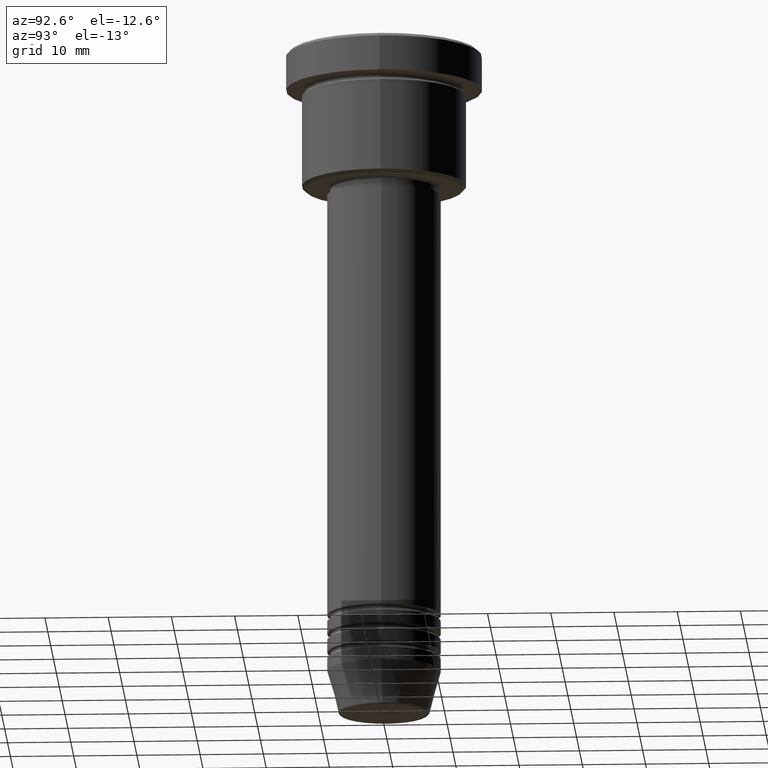
[diagram: clean part render]
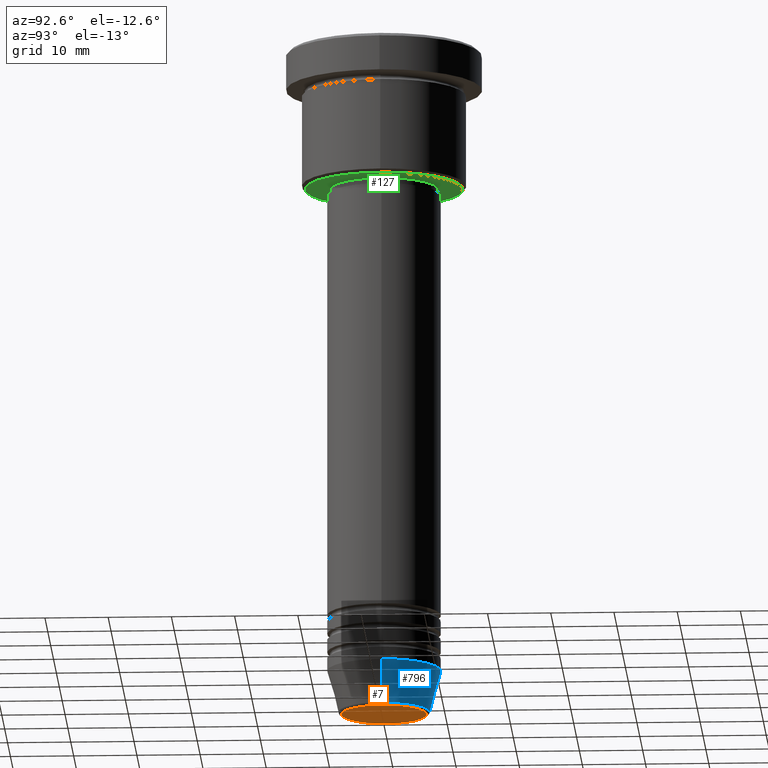
[diagram: same view with three faces highlighted in distinct colors, each labeled with its STEP entity id]
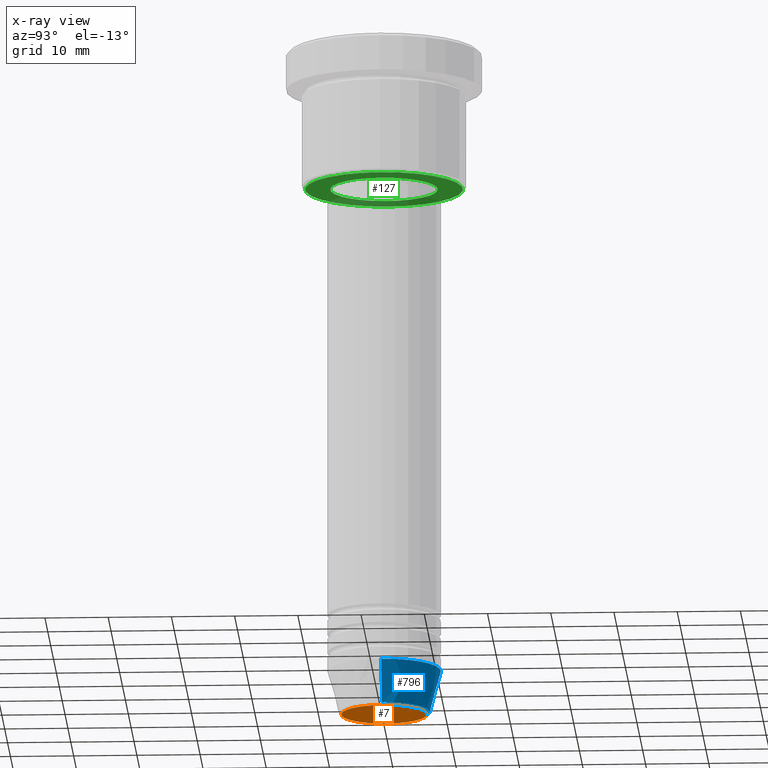
[diagram: x-ray of the same camera — body ghosted, the three highlighted faces saturated]
A machine part, auxiliary view with three faces highlighted in distinct colors.
The next image is the same camera in x-ray (body ghosted, the three faces saturated) — at least one of them is partly hidden behind the body in this view.
Their STEP definitions:

[orange] entity #7 — the highlighted planar face has unit normal (0, -0, 1).
#7 = ADVANCED_FACE ( 'NONE', ( #252 ), #806, .F. ) ;
#39 = CARTESIAN_POINT ( 'NONE',  ( -6.740692158992658278, 8.550696569392689626E-16, -107.0000000000000000 ) ) ;
#164 = CARTESIAN_POINT ( 'NONE',  ( 0.000000000000000000, 0.000000000000000000, -107.0000000000000000 ) ) ;
#177 = CARTESIAN_POINT ( 'NONE',  ( 0.000000000000000000, 0.000000000000000000, -107.0000000000000000 ) ) ;
#225 = EDGE_CURVE ( 'NONE', #855, #666, #730, .T. ) ;
#251 = DIRECTION ( 'NONE',  ( 0.000000000000000000, 0.000000000000000000, -1.000000000000000000 ) ) ;
#252 = FACE_OUTER_BOUND ( 'NONE', #476, .T. ) ;
#359 = DIRECTION ( 'NONE',  ( 0.000000000000000000, -0.000000000000000000, 1.000000000000000000 ) ) ;
#432 = CIRCLE ( 'NONE', #681, 6.740692158992658278 ) ;
#463 = CARTESIAN_POINT ( 'NONE',  ( 6.740692158992658278, 0.000000000000000000, -107.0000000000000000 ) ) ;
#476 = EDGE_LOOP ( 'NONE', ( #1009, #1174 ) ) ;
#505 = CARTESIAN_POINT ( 'NONE',  ( 0.000000000000000000, 0.000000000000000000, -107.0000000000000000 ) ) ;
#510 = AXIS2_PLACEMENT_3D ( 'NONE', #164, #531, #889 ) ;
#531 = DIRECTION ( 'NONE',  ( 0.000000000000000000, 0.000000000000000000, -1.000000000000000000 ) ) ;
#666 = VERTEX_POINT ( 'NONE', #463 ) ;
#681 = AXIS2_PLACEMENT_3D ( 'NONE', #505, #251, #1088 ) ;
#730 = CIRCLE ( 'NONE', #510, 6.740692158992658278 ) ;
#806 = PLANE ( 'NONE',  #902 ) ;
#855 = VERTEX_POINT ( 'NONE', #39 ) ;
#889 = DIRECTION ( 'NONE',  ( 1.000000000000000000, 0.000000000000000000, 0.000000000000000000 ) ) ;
#902 = AXIS2_PLACEMENT_3D ( 'NONE', #177, #359, #975 ) ;
#975 = DIRECTION ( 'NONE',  ( 1.000000000000000000, 0.000000000000000000, 0.000000000000000000 ) ) ;
#1009 = ORIENTED_EDGE ( 'NONE', *, *, #1016, .T. ) ;
#1016 = EDGE_CURVE ( 'NONE', #666, #855, #432, .T. ) ;
#1088 = DIRECTION ( 'NONE',  ( 1.000000000000000000, 0.000000000000000000, 0.000000000000000000 ) ) ;
#1174 = ORIENTED_EDGE ( 'NONE', *, *, #225, .T. ) ;

[blue] entity #796 — the highlighted conical surface has half-angle 15 deg.
#23 = CARTESIAN_POINT ( 'NONE',  ( -9.000000000000000000, 1.102182119232617714E-15, -100.0000000000000000 ) ) ;
#28 = ORIENTED_EDGE ( 'NONE', *, *, #40, .T. ) ;
#37 = VERTEX_POINT ( 'NONE', #391 ) ;
#40 = EDGE_CURVE ( 'NONE', #624, #874, #1121, .T. ) ;
#51 = DIRECTION ( 'NONE',  ( -0.000000000000000000, -0.000000000000000000, 1.000000000000000000 ) ) ;
#90 = VECTOR ( 'NONE', #916, 1000.000000000000000 ) ;
#101 = DIRECTION ( 'NONE',  ( 1.000000000000000000, 0.000000000000000000, 0.000000000000000000 ) ) ;
#187 = EDGE_LOOP ( 'NONE', ( #274, #28, #683, #1147 ) ) ;
#274 = ORIENTED_EDGE ( 'NONE', *, *, #910, .T. ) ;
#284 = CARTESIAN_POINT ( 'NONE',  ( -7.223655072137198374, 9.934123627281771026E-16, -106.6294095225512422 ) ) ;
#390 = CONICAL_SURFACE ( 'NONE', #828, 9.000000000000000000, 0.2617993877991500740 ) ;
#391 = CARTESIAN_POINT ( 'NONE',  ( 9.000000000000000000, 0.000000000000000000, -100.0000000000000000 ) ) ;
#526 = DIRECTION ( 'NONE',  ( 1.000000000000000000, 0.000000000000000000, 0.000000000000000000 ) ) ;
#550 = CIRCLE ( 'NONE', #905, 9.000000000000000000 ) ;
#561 = CARTESIAN_POINT ( 'NONE',  ( 9.000000000000000000, 0.000000000000000000, -100.0000000000000000 ) ) ;
#614 = CARTESIAN_POINT ( 'NONE',  ( 0.000000000000000000, 0.000000000000000000, -106.6294095225512422 ) ) ;
#621 = VECTOR ( 'NONE', #741, 1000.000000000000000 ) ;
#623 = AXIS2_PLACEMENT_3D ( 'NONE', #614, #632, #989 ) ;
#624 = VERTEX_POINT ( 'NONE', #284 ) ;
#632 = DIRECTION ( 'NONE',  ( -0.000000000000000000, -0.000000000000000000, 1.000000000000000000 ) ) ;
#650 = LINE ( 'NONE', #561, #90 ) ;
#655 = FACE_OUTER_BOUND ( 'NONE', #187, .T. ) ;
#665 = EDGE_CURVE ( 'NONE', #895, #37, #650, .T. ) ;
#679 = EDGE_CURVE ( 'NONE', #37, #874, #550, .T. ) ;
#683 = ORIENTED_EDGE ( 'NONE', *, *, #679, .F. ) ;
#741 = DIRECTION ( 'NONE',  ( -0.2588190451025213501, 3.169619151431772337E-17, 0.9659258262890680902 ) ) ;
#796 = ADVANCED_FACE ( 'NONE', ( #655 ), #390, .T. ) ;
#805 = DIRECTION ( 'NONE',  ( -0.000000000000000000, -0.000000000000000000, 1.000000000000000000 ) ) ;
#828 = AXIS2_PLACEMENT_3D ( 'NONE', #1017, #805, #101 ) ;
#847 = CIRCLE ( 'NONE', #623, 7.223655072137197486 ) ;
#857 = CARTESIAN_POINT ( 'NONE',  ( 0.000000000000000000, 0.000000000000000000, -100.0000000000000000 ) ) ;
#874 = VERTEX_POINT ( 'NONE', #876 ) ;
#876 = CARTESIAN_POINT ( 'NONE',  ( -9.000000000000000000, 1.102182119232617714E-15, -100.0000000000000000 ) ) ;
#895 = VERTEX_POINT ( 'NONE', #1168 ) ;
#905 = AXIS2_PLACEMENT_3D ( 'NONE', #857, #51, #526 ) ;
#910 = EDGE_CURVE ( 'NONE', #895, #624, #847, .T. ) ;
#916 = DIRECTION ( 'NONE',  ( 0.2588190451025213501, 0.000000000000000000, 0.9659258262890680902 ) ) ;
#989 = DIRECTION ( 'NONE',  ( 1.000000000000000000, 0.000000000000000000, 0.000000000000000000 ) ) ;
#1017 = CARTESIAN_POINT ( 'NONE',  ( 0.000000000000000000, 0.000000000000000000, -100.0000000000000000 ) ) ;
#1121 = LINE ( 'NONE', #23, #621 ) ;
#1147 = ORIENTED_EDGE ( 'NONE', *, *, #665, .F. ) ;
#1168 = CARTESIAN_POINT ( 'NONE',  ( 7.223655072137197486, 0.000000000000000000, -106.6294095225512422 ) ) ;

[green] entity #127 — the highlighted planar face has unit normal (0, 0, -1).
#45 = FACE_BOUND ( 'NONE', #443, .T. ) ;
#71 = AXIS2_PLACEMENT_3D ( 'NONE', #480, #993, #618 ) ;
#93 = CARTESIAN_POINT ( 'NONE',  ( 0.000000000000000000, 0.000000000000000000, -21.99999999999999645 ) ) ;
#127 = ADVANCED_FACE ( 'NONE', ( #151, #45 ), #771, .T. ) ;
#151 = FACE_OUTER_BOUND ( 'NONE', #1158, .T. ) ;
#174 = DIRECTION ( 'NONE',  ( -0.000000000000000000, -0.000000000000000000, 1.000000000000000000 ) ) ;
#181 = VERTEX_POINT ( 'NONE', #460 ) ;
#183 = CARTESIAN_POINT ( 'NONE',  ( -8.499999999999998224, 1.040949779275249943E-15, -21.99999999999999645 ) ) ;
#193 = DIRECTION ( 'NONE',  ( 0.000000000000000000, 0.000000000000000000, -1.000000000000000000 ) ) ;
#209 = CIRCLE ( 'NONE', #865, 12.49999999999998401 ) ;
#223 = VERTEX_POINT ( 'NONE', #974 ) ;
#306 = VERTEX_POINT ( 'NONE', #987 ) ;
#322 = DIRECTION ( 'NONE',  ( 0.000000000000000000, 0.000000000000000000, -1.000000000000000000 ) ) ;
#332 = AXIS2_PLACEMENT_3D ( 'NONE', #519, #322, #579 ) ;
#342 = EDGE_CURVE ( 'NONE', #181, #223, #429, .T. ) ;
#355 = DIRECTION ( 'NONE',  ( 0.000000000000000000, 0.000000000000000000, -1.000000000000000000 ) ) ;
#367 = VERTEX_POINT ( 'NONE', #183 ) ;
#429 = CIRCLE ( 'NONE', #641, 12.49999999999998401 ) ;
#443 = EDGE_LOOP ( 'NONE', ( #872, #1020 ) ) ;
#444 = CARTESIAN_POINT ( 'NONE',  ( 0.000000000000000000, 0.000000000000000000, -21.99999999999999645 ) ) ;
#450 = AXIS2_PLACEMENT_3D ( 'NONE', #93, #174, #706 ) ;
#460 = CARTESIAN_POINT ( 'NONE',  ( -12.49999999999998401, 1.561424668912874125E-15, -21.99999999999999645 ) ) ;
#473 = CIRCLE ( 'NONE', #450, 8.499999999999998224 ) ;
#480 = CARTESIAN_POINT ( 'NONE',  ( 0.000000000000000000, 0.000000000000000000, -21.99999999999999645 ) ) ;
#506 = ORIENTED_EDGE ( 'NONE', *, *, #592, .T. ) ;
#519 = CARTESIAN_POINT ( 'NONE',  ( 0.000000000000000000, 13.00000000000000000, -21.99999999999999645 ) ) ;
#559 = EDGE_CURVE ( 'NONE', #367, #306, #473, .T. ) ;
#579 = DIRECTION ( 'NONE',  ( -1.000000000000000000, 0.000000000000000000, -0.000000000000000000 ) ) ;
#592 = EDGE_CURVE ( 'NONE', #223, #181, #209, .T. ) ;
#618 = DIRECTION ( 'NONE',  ( 1.000000000000000000, 0.000000000000000000, 0.000000000000000000 ) ) ;
#631 = DIRECTION ( 'NONE',  ( -1.000000000000000000, 0.000000000000000000, 0.000000000000000000 ) ) ;
#633 = ORIENTED_EDGE ( 'NONE', *, *, #342, .T. ) ;
#641 = AXIS2_PLACEMENT_3D ( 'NONE', #717, #193, #1100 ) ;
#706 = DIRECTION ( 'NONE',  ( 1.000000000000000000, 0.000000000000000000, 0.000000000000000000 ) ) ;
#717 = CARTESIAN_POINT ( 'NONE',  ( 0.000000000000000000, 0.000000000000000000, -21.99999999999999645 ) ) ;
#771 = PLANE ( 'NONE',  #332 ) ;
#865 = AXIS2_PLACEMENT_3D ( 'NONE', #444, #355, #631 ) ;
#872 = ORIENTED_EDGE ( 'NONE', *, *, #946, .T. ) ;
#946 = EDGE_CURVE ( 'NONE', #306, #367, #1156, .T. ) ;
#974 = CARTESIAN_POINT ( 'NONE',  ( 12.49999999999998401, 0.000000000000000000, -21.99999999999999645 ) ) ;
#987 = CARTESIAN_POINT ( 'NONE',  ( 8.499999999999998224, 0.000000000000000000, -21.99999999999999645 ) ) ;
#993 = DIRECTION ( 'NONE',  ( -0.000000000000000000, -0.000000000000000000, 1.000000000000000000 ) ) ;
#1020 = ORIENTED_EDGE ( 'NONE', *, *, #559, .T. ) ;
#1100 = DIRECTION ( 'NONE',  ( -1.000000000000000000, 0.000000000000000000, 0.000000000000000000 ) ) ;
#1156 = CIRCLE ( 'NONE', #71, 8.499999999999998224 ) ;
#1158 = EDGE_LOOP ( 'NONE', ( #506, #633 ) ) ;